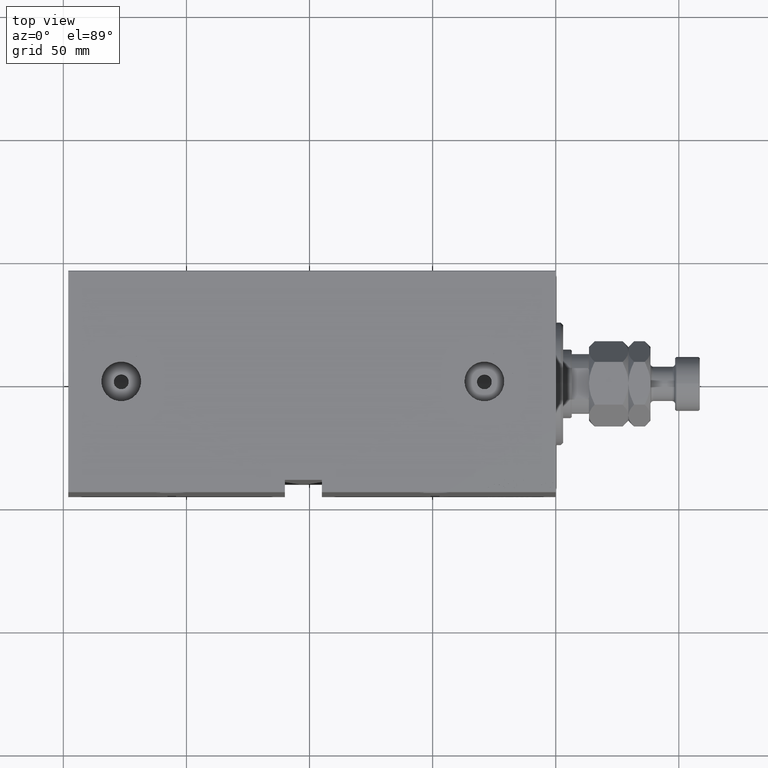
[diagram: clean part render]
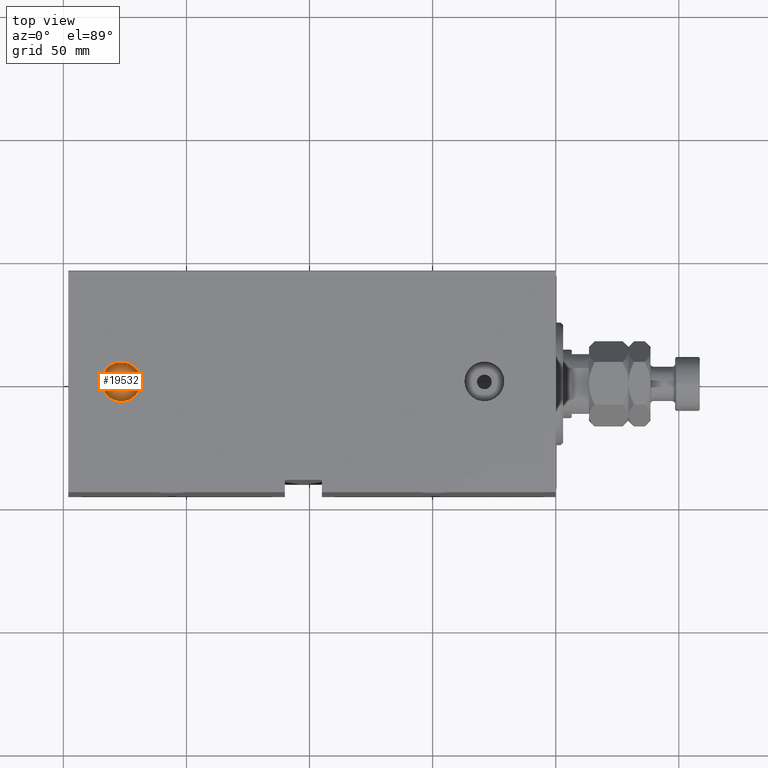
[diagram: same view with one face highlighted and labeled with its STEP entity id]
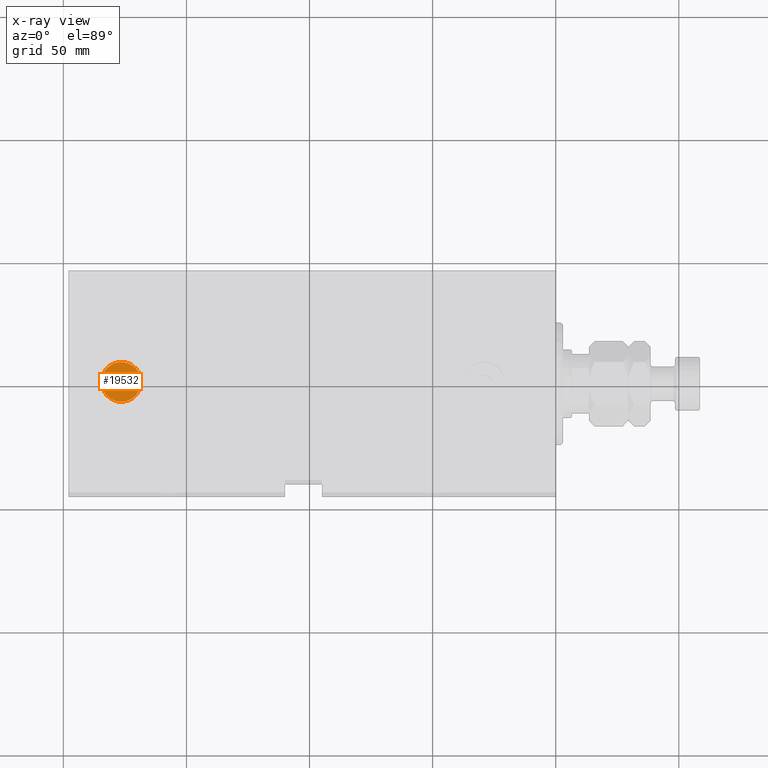
[diagram: x-ray of the same camera — body ghosted, the highlighted face saturated]
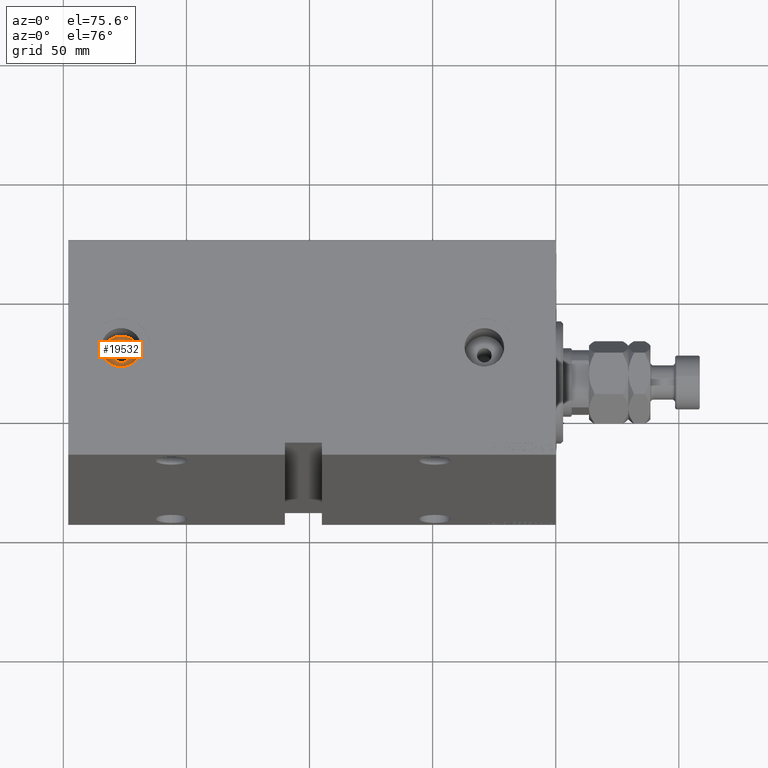
[diagram: same view with one face highlighted and labeled with its STEP entity id]
A machine part, top view. The second image highlights one B-rep face of the part: STEP entity #19532.
The next image is the same camera in x-ray: the body ghosted, the highlighted face saturated — about 0% of this face is hidden behind the body in this view.
A second angle (auxiliary view) of the same face is appended — the face is thin or edge-on in the first view.
In plain terms, the highlighted planar face has unit normal (0, 0, 1).
Its self-contained STEP definition (entity closure, byte-faithful):
#900 = DIRECTION ( 'NONE',  ( 0.000000000000000000, 0.000000000000000000, 1.000000000000000000 ) ) ;
#3119 = CARTESIAN_POINT ( 'NONE',  ( 176.5000000000000000, -1.329954664915552316E-14, 44.24000000000000199 ) ) ;
#3554 = EDGE_CURVE ( 'NONE', #36913, #31839, #11414, .T. ) ;
#3616 = AXIS2_PLACEMENT_3D ( 'NONE', #17369, #31572, #4254 ) ;
#4119 = CARTESIAN_POINT ( 'NONE',  ( 176.5000000000000000, -1.329954664915552316E-14, 44.24000000000000199 ) ) ;
#4254 = DIRECTION ( 'NONE',  ( 1.000000000000000000, 0.000000000000000000, 0.000000000000000000 ) ) ;
#5129 = CARTESIAN_POINT ( 'NONE',  ( 184.5850000000000080, -1.329954664915552316E-14, 44.24000000000000199 ) ) ;
#5265 = VERTEX_POINT ( 'NONE', #14491 ) ;
#6792 = CARTESIAN_POINT ( 'NONE',  ( 176.5000000000000000, -1.329954664915552316E-14, 44.24000000000000199 ) ) ;
#7075 = DIRECTION ( 'NONE',  ( 0.000000000000000000, 0.000000000000000000, 1.000000000000000000 ) ) ;
#9149 = VERTEX_POINT ( 'NONE', #42794 ) ;
#10245 = DIRECTION ( 'NONE',  ( 1.000000000000000000, 0.000000000000000000, -0.000000000000000000 ) ) ;
#11049 = CIRCLE ( 'NONE', #3616, 8.085000000000007958 ) ;
#11414 = CIRCLE ( 'NONE', #21825, 8.085000000000007958 ) ;
#12981 = ORIENTED_EDGE ( 'NONE', *, *, #3554, .T. ) ;
#14491 = CARTESIAN_POINT ( 'NONE',  ( 179.5000000000000000, -1.329954664915552316E-14, 44.24000000000000199 ) ) ;
#15324 = AXIS2_PLACEMENT_3D ( 'NONE', #3119, #7075, #31766 ) ;
#16951 = AXIS2_PLACEMENT_3D ( 'NONE', #4119, #39500, #10245 ) ;
#17369 = CARTESIAN_POINT ( 'NONE',  ( 176.5000000000000000, -1.329954664915552316E-14, 44.24000000000000199 ) ) ;
#17870 = ORIENTED_EDGE ( 'NONE', *, *, #41089, .F. ) ;
#18142 = DIRECTION ( 'NONE',  ( 1.000000000000000000, 0.000000000000000000, 0.000000000000000000 ) ) ;
#19532 = ADVANCED_FACE ( 'NONE', ( #32757, #27947 ), #42148, .T. ) ;
#20667 = EDGE_CURVE ( 'NONE', #31839, #36913, #11049, .T. ) ;
#21210 = DIRECTION ( 'NONE',  ( 0.000000000000000000, 0.000000000000000000, 1.000000000000000000 ) ) ;
#21245 = AXIS2_PLACEMENT_3D ( 'NONE', #6792, #21210, #43097 ) ;
#21825 = AXIS2_PLACEMENT_3D ( 'NONE', #29096, #900, #18142 ) ;
#22661 = CARTESIAN_POINT ( 'NONE',  ( 168.4149999999999920, -1.230941971204488722E-14, 44.24000000000000199 ) ) ;
#27947 = FACE_OUTER_BOUND ( 'NONE', #32216, .T. ) ;
#29096 = CARTESIAN_POINT ( 'NONE',  ( 176.5000000000000000, -1.329954664915552316E-14, 44.24000000000000199 ) ) ;
#29426 = CIRCLE ( 'NONE', #21245, 3.000000000000002665 ) ;
#31572 = DIRECTION ( 'NONE',  ( 0.000000000000000000, 0.000000000000000000, 1.000000000000000000 ) ) ;
#31766 = DIRECTION ( 'NONE',  ( 1.000000000000000000, 0.000000000000000000, 0.000000000000000000 ) ) ;
#31839 = VERTEX_POINT ( 'NONE', #22661 ) ;
#32216 = EDGE_LOOP ( 'NONE', ( #12981, #36463 ) ) ;
#32757 = FACE_BOUND ( 'NONE', #36355, .T. ) ;
#36355 = EDGE_LOOP ( 'NONE', ( #17870, #43000 ) ) ;
#36463 = ORIENTED_EDGE ( 'NONE', *, *, #20667, .T. ) ;
#36754 = EDGE_CURVE ( 'NONE', #9149, #5265, #29426, .T. ) ;
#36913 = VERTEX_POINT ( 'NONE', #5129 ) ;
#39500 = DIRECTION ( 'NONE',  ( 0.000000000000000000, 0.000000000000000000, 1.000000000000000000 ) ) ;
#40609 = CIRCLE ( 'NONE', #15324, 3.000000000000002665 ) ;
#41089 = EDGE_CURVE ( 'NONE', #5265, #9149, #40609, .T. ) ;
#42148 = PLANE ( 'NONE',  #16951 ) ;
#42794 = CARTESIAN_POINT ( 'NONE',  ( 173.5000000000000000, -1.293215260941131929E-14, 44.24000000000000199 ) ) ;
#43000 = ORIENTED_EDGE ( 'NONE', *, *, #36754, .F. ) ;
#43097 = DIRECTION ( 'NONE',  ( 1.000000000000000000, 0.000000000000000000, 0.000000000000000000 ) ) ;